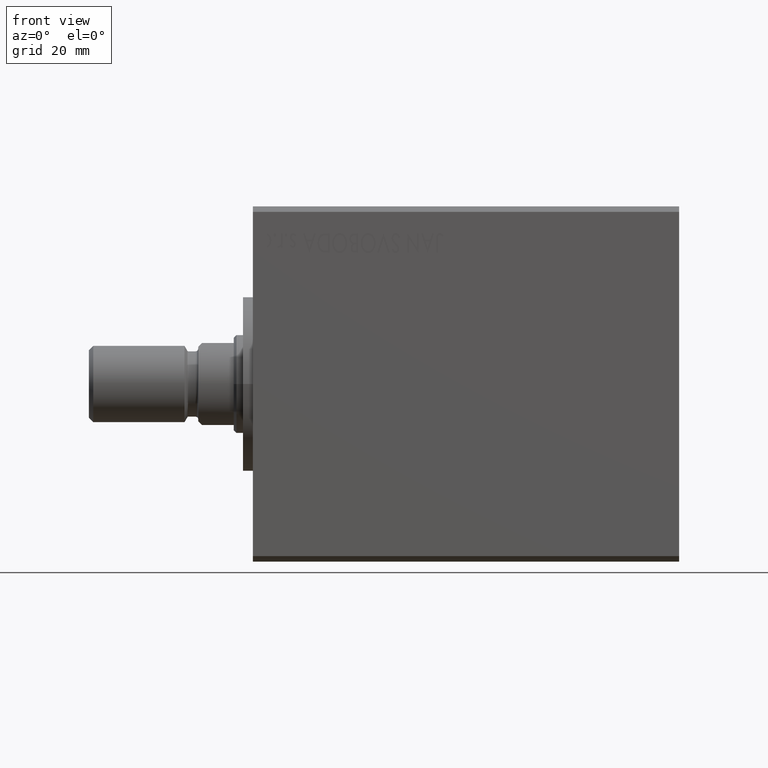
[diagram: clean part render]
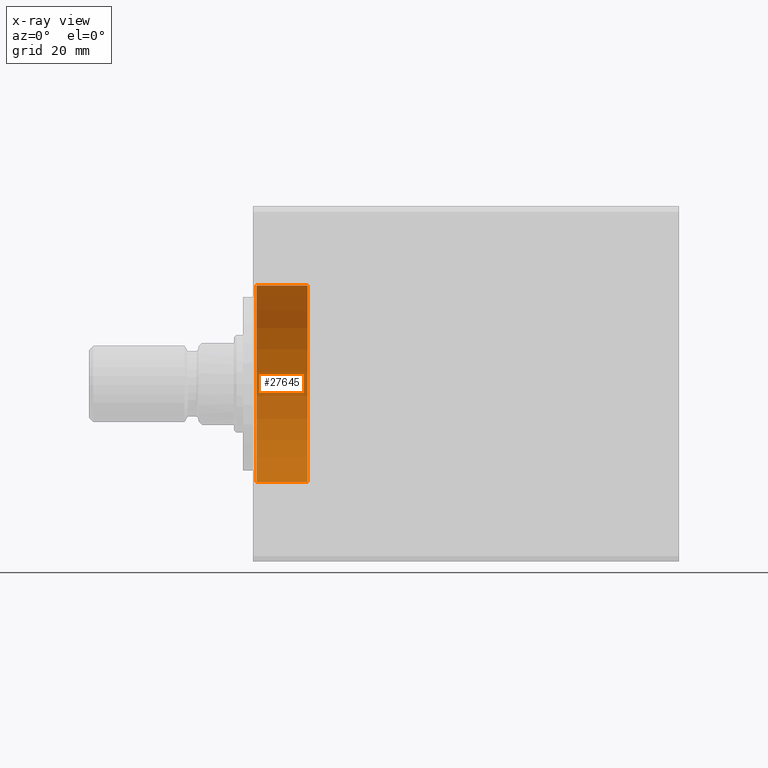
[diagram: x-ray — body ghosted, one internal face saturated and labeled with its STEP entity id]
A machine part, front view, then the same camera in x-ray: the body is ghosted and one INTERNAL B-rep face — a face not visible from any outside direction — is saturated and labeled: STEP entity #27645.
In plain terms, the highlighted cylindrical surface (partial cylindrical patch) has radius 18 mm, axis along (-1, -0, -0).
Its self-contained STEP definition (entity closure, byte-faithful):
#3537 = CARTESIAN_POINT ( 'NONE',  ( 10.00000000000000000, 2.204364238465235428E-15, -18.00000000000000000 ) ) ;
#3973 = AXIS2_PLACEMENT_3D ( 'NONE', #6150, #16689, #40503 ) ;
#5283 = CARTESIAN_POINT ( 'NONE',  ( 10.00000000000000000, 2.204364238465235428E-15, -18.00000000000000000 ) ) ;
#5574 = VERTEX_POINT ( 'NONE', #40736 ) ;
#6150 = CARTESIAN_POINT ( 'NONE',  ( 10.00000000000000000, 0.000000000000000000, 0.000000000000000000 ) ) ;
#6398 = DIRECTION ( 'NONE',  ( 0.000000000000000000, 0.000000000000000000, -1.000000000000000000 ) ) ;
#7067 = ORIENTED_EDGE ( 'NONE', *, *, #39367, .F. ) ;
#8942 = VERTEX_POINT ( 'NONE', #35760 ) ;
#10442 = VECTOR ( 'NONE', #38339, 1000.000000000000000 ) ;
#11247 = VERTEX_POINT ( 'NONE', #5283 ) ;
#12154 = EDGE_CURVE ( 'NONE', #36400, #5574, #13740, .T. ) ;
#13740 = CIRCLE ( 'NONE', #23773, 18.00000000000000000 ) ;
#15733 = EDGE_CURVE ( 'NONE', #11247, #5574, #41043, .T. ) ;
#16689 = DIRECTION ( 'NONE',  ( -1.000000000000000000, -0.000000000000000000, -0.000000000000000000 ) ) ;
#19561 = DIRECTION ( 'NONE',  ( 0.000000000000000000, 0.000000000000000000, 1.000000000000000000 ) ) ;
#20509 = ORIENTED_EDGE ( 'NONE', *, *, #12154, .T. ) ;
#21711 = LINE ( 'NONE', #31375, #10442 ) ;
#22797 = DIRECTION ( 'NONE',  ( -1.000000000000000000, 0.000000000000000000, 0.000000000000000000 ) ) ;
#23773 = AXIS2_PLACEMENT_3D ( 'NONE', #40977, #22797, #6398 ) ;
#25721 = ORIENTED_EDGE ( 'NONE', *, *, #15733, .F. ) ;
#27230 = FACE_OUTER_BOUND ( 'NONE', #30651, .T. ) ;
#27645 = ADVANCED_FACE ( 'NONE', ( #27230 ), #37351, .F. ) ;
#30651 = EDGE_LOOP ( 'NONE', ( #25721, #7067, #37885, #20509 ) ) ;
#31343 = EDGE_CURVE ( 'NONE', #8942, #36400, #21711, .T. ) ;
#31375 = CARTESIAN_POINT ( 'NONE',  ( 10.00000000000000000, 0.000000000000000000, 18.00000000000000000 ) ) ;
#32883 = VECTOR ( 'NONE', #38559, 1000.000000000000000 ) ;
#34827 = CIRCLE ( 'NONE', #42715, 18.00000000000000000 ) ;
#35760 = CARTESIAN_POINT ( 'NONE',  ( 10.00000000000000000, 0.000000000000000000, 18.00000000000000000 ) ) ;
#36400 = VERTEX_POINT ( 'NONE', #37832 ) ;
#37351 = CYLINDRICAL_SURFACE ( 'NONE', #3973, 18.00000000000000000 ) ;
#37832 = CARTESIAN_POINT ( 'NONE',  ( 0.6999999999999888534, 0.000000000000000000, 18.00000000000000000 ) ) ;
#37885 = ORIENTED_EDGE ( 'NONE', *, *, #31343, .T. ) ;
#38339 = DIRECTION ( 'NONE',  ( -1.000000000000000000, -0.000000000000000000, -0.000000000000000000 ) ) ;
#38559 = DIRECTION ( 'NONE',  ( -1.000000000000000000, -0.000000000000000000, -0.000000000000000000 ) ) ;
#39367 = EDGE_CURVE ( 'NONE', #8942, #11247, #34827, .T. ) ;
#40503 = DIRECTION ( 'NONE',  ( 0.000000000000000000, 0.000000000000000000, 1.000000000000000000 ) ) ;
#40736 = CARTESIAN_POINT ( 'NONE',  ( 0.6999999999999888534, 2.204364238465235428E-15, -18.00000000000000000 ) ) ;
#40977 = CARTESIAN_POINT ( 'NONE',  ( 0.6999999999999888534, 0.000000000000000000, 0.000000000000000000 ) ) ;
#41043 = LINE ( 'NONE', #3537, #32883 ) ;
#42715 = AXIS2_PLACEMENT_3D ( 'NONE', #43151, #42938, #19561 ) ;
#42938 = DIRECTION ( 'NONE',  ( -1.000000000000000000, 0.000000000000000000, 0.000000000000000000 ) ) ;
#43151 = CARTESIAN_POINT ( 'NONE',  ( 10.00000000000000000, 0.000000000000000000, 0.000000000000000000 ) ) ;